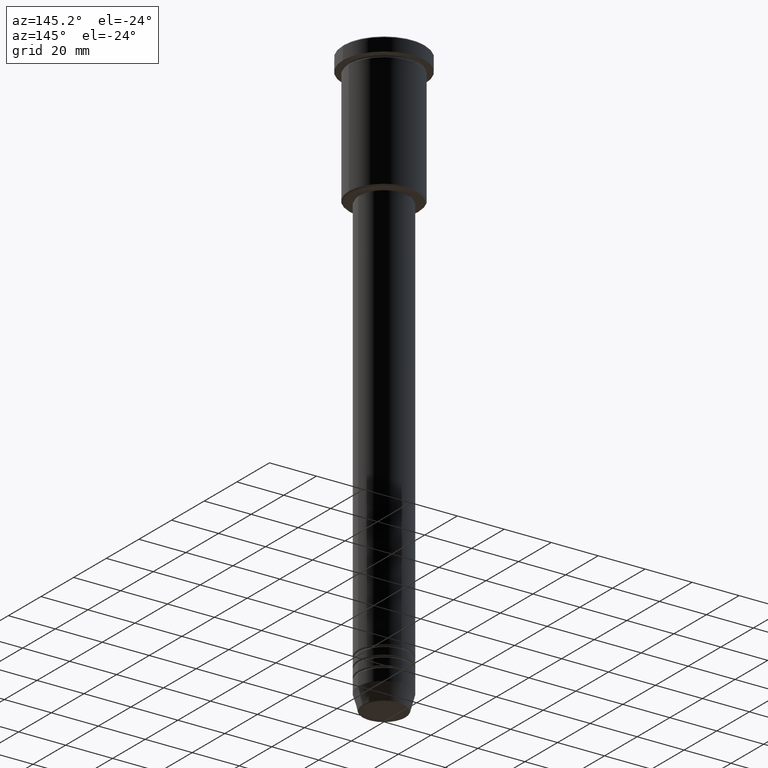
[diagram: clean part render]
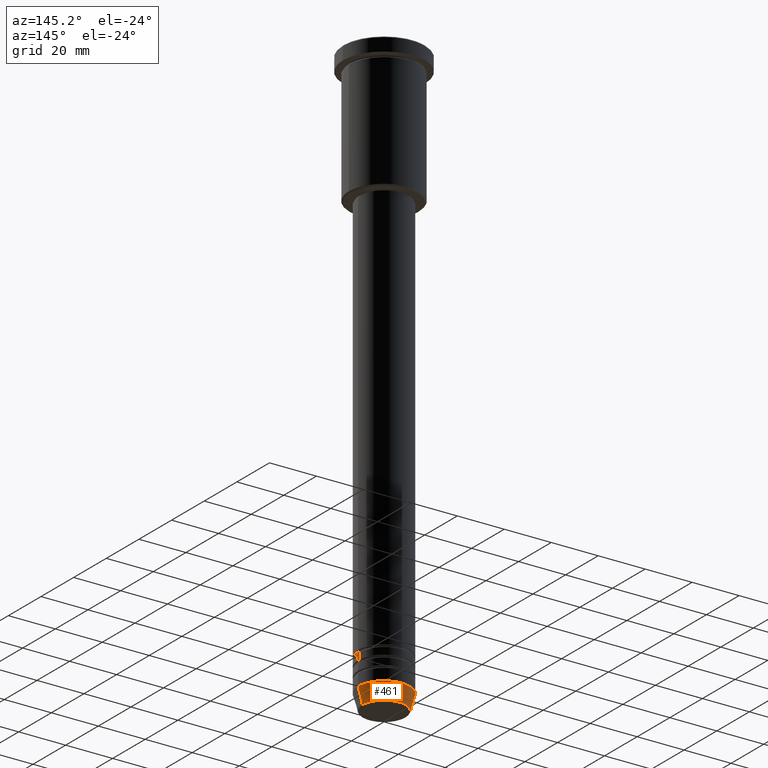
[diagram: same view with one face highlighted and labeled with its STEP entity id]
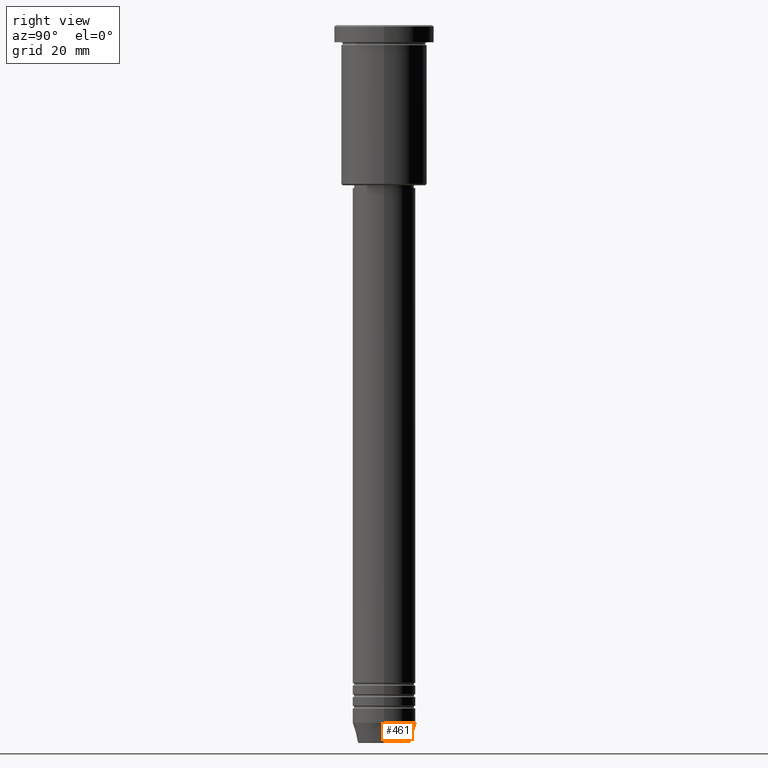
[diagram: same view with one face highlighted and labeled with its STEP entity id]
A machine part, auxiliary view. The second image highlights one B-rep face of the part: STEP entity #461.
A second angle (right view) of the same face is appended — the face is thin or edge-on in the first view.
In plain terms, the highlighted conical surface has half-angle 15 deg.
Its self-contained STEP definition (entity closure, byte-faithful):
#13 = CARTESIAN_POINT ( 'NONE',  ( 0.000000000000000000, 0.000000000000000000, -244.0000000000000000 ) ) ;
#20 = EDGE_CURVE ( 'NONE', #724, #587, #282, .T. ) ;
#42 = CARTESIAN_POINT ( 'NONE',  ( 0.000000000000000000, 0.000000000000000000, -244.0000000000000000 ) ) ;
#63 = ORIENTED_EDGE ( 'NONE', *, *, #1140, .T. ) ;
#85 = ORIENTED_EDGE ( 'NONE', *, *, #20, .T. ) ;
#89 = CARTESIAN_POINT ( 'NONE',  ( -11.00000000000000000, 1.347111479062088405E-15, -244.0000000000000000 ) ) ;
#101 = VERTEX_POINT ( 'NONE', #89 ) ;
#179 = VERTEX_POINT ( 'NONE', #1004 ) ;
#282 = CIRCLE ( 'NONE', #599, 9.223655072137189492 ) ;
#325 = DIRECTION ( 'NONE',  ( 0.2588190451025213501, 0.000000000000000000, 0.9659258262890680902 ) ) ;
#329 = CONICAL_SURFACE ( 'NONE', #415, 11.00000000000000000, 0.2617993877991500740 ) ;
#354 = EDGE_CURVE ( 'NONE', #724, #179, #1148, .T. ) ;
#362 = EDGE_CURVE ( 'NONE', #179, #101, #653, .T. ) ;
#415 = AXIS2_PLACEMENT_3D ( 'NONE', #13, #722, #730 ) ;
#461 = ADVANCED_FACE ( 'NONE', ( #625 ), #329, .T. ) ;
#551 = ORIENTED_EDGE ( 'NONE', *, *, #354, .F. ) ;
#573 = CARTESIAN_POINT ( 'NONE',  ( -11.00000000000000000, 1.347111479062088405E-15, -244.0000000000000000 ) ) ;
#587 = VERTEX_POINT ( 'NONE', #646 ) ;
#599 = AXIS2_PLACEMENT_3D ( 'NONE', #682, #665, #703 ) ;
#609 = DIRECTION ( 'NONE',  ( 1.000000000000000000, 0.000000000000000000, 0.000000000000000000 ) ) ;
#610 = CARTESIAN_POINT ( 'NONE',  ( 9.223655072137189492, 0.000000000000000000, -250.6294095225512422 ) ) ;
#625 = FACE_OUTER_BOUND ( 'NONE', #955, .T. ) ;
#646 = CARTESIAN_POINT ( 'NONE',  ( -9.223655072137189492, 1.238341722557647202E-15, -250.6294095225512422 ) ) ;
#653 = CIRCLE ( 'NONE', #884, 11.00000000000000000 ) ;
#665 = DIRECTION ( 'NONE',  ( -0.000000000000000000, -0.000000000000000000, 1.000000000000000000 ) ) ;
#682 = CARTESIAN_POINT ( 'NONE',  ( 0.000000000000000000, 0.000000000000000000, -250.6294095225512422 ) ) ;
#703 = DIRECTION ( 'NONE',  ( 1.000000000000000000, 0.000000000000000000, 0.000000000000000000 ) ) ;
#722 = DIRECTION ( 'NONE',  ( -0.000000000000000000, -0.000000000000000000, 1.000000000000000000 ) ) ;
#724 = VERTEX_POINT ( 'NONE', #610 ) ;
#730 = DIRECTION ( 'NONE',  ( 1.000000000000000000, 0.000000000000000000, 0.000000000000000000 ) ) ;
#828 = DIRECTION ( 'NONE',  ( -0.2588190451025213501, 3.169619151431772337E-17, 0.9659258262890680902 ) ) ;
#884 = AXIS2_PLACEMENT_3D ( 'NONE', #42, #1061, #609 ) ;
#927 = LINE ( 'NONE', #573, #1158 ) ;
#955 = EDGE_LOOP ( 'NONE', ( #85, #63, #1020, #551 ) ) ;
#1004 = CARTESIAN_POINT ( 'NONE',  ( 11.00000000000000000, 0.000000000000000000, -244.0000000000000000 ) ) ;
#1020 = ORIENTED_EDGE ( 'NONE', *, *, #362, .F. ) ;
#1061 = DIRECTION ( 'NONE',  ( -0.000000000000000000, -0.000000000000000000, 1.000000000000000000 ) ) ;
#1131 = CARTESIAN_POINT ( 'NONE',  ( 11.00000000000000000, 0.000000000000000000, -244.0000000000000000 ) ) ;
#1140 = EDGE_CURVE ( 'NONE', #587, #101, #927, .T. ) ;
#1148 = LINE ( 'NONE', #1131, #1171 ) ;
#1158 = VECTOR ( 'NONE', #828, 1000.000000000000000 ) ;
#1171 = VECTOR ( 'NONE', #325, 1000.000000000000000 ) ;